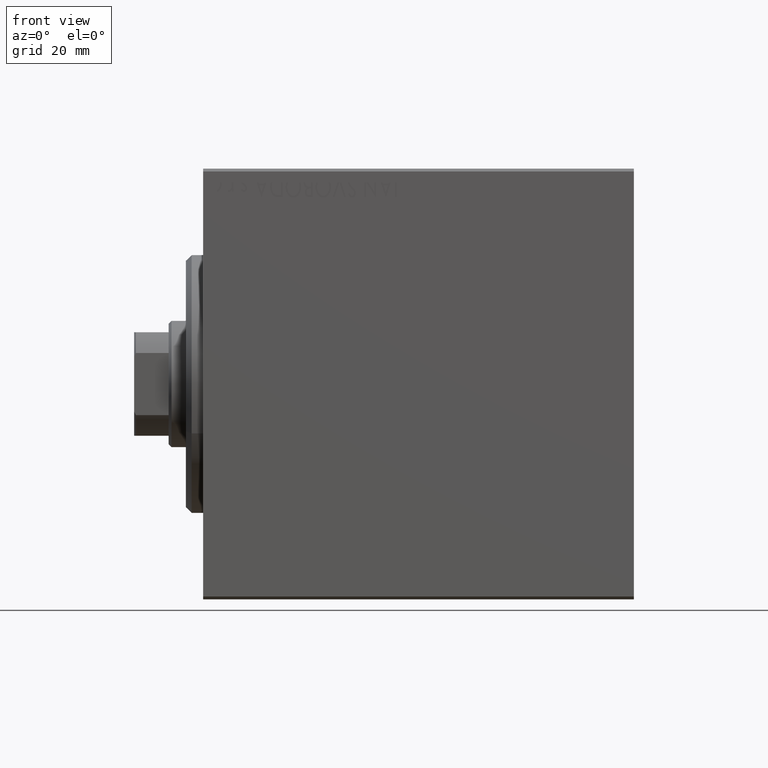
[diagram: clean part render]
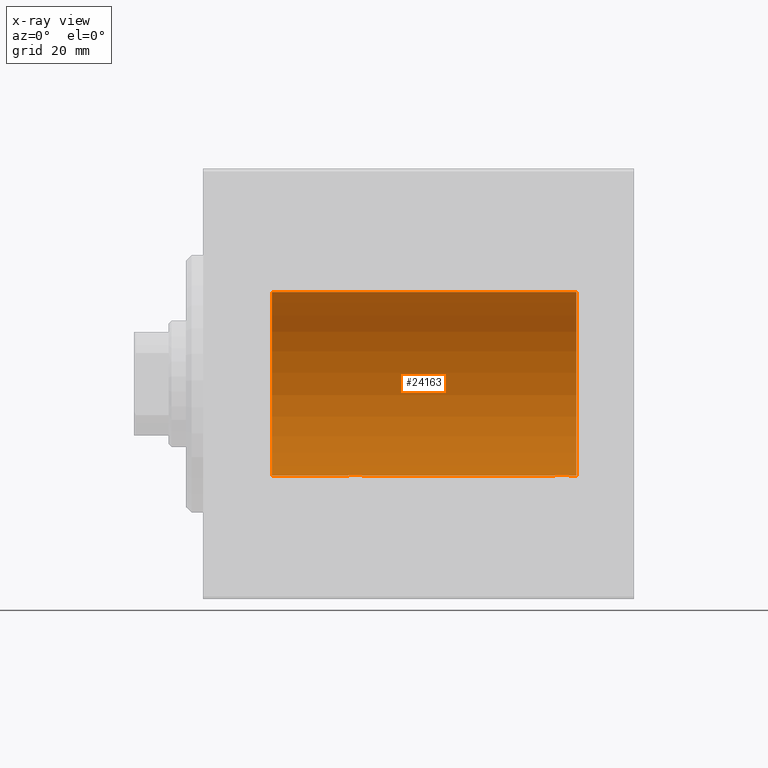
[diagram: x-ray — body ghosted, one internal face saturated and labeled with its STEP entity id]
A machine part, front view, then the same camera in x-ray: the body is ghosted and one INTERNAL B-rep face — a face not visible from any outside direction — is saturated and labeled: STEP entity #24163.
In plain terms, the highlighted cylindrical surface (partial cylindrical patch) has radius 16 mm, axis along (-1, -0, -0).
Its self-contained STEP definition (entity closure, byte-faithful):
#25 = ORIENTED_EDGE ( 'NONE', *, *, #27918, .F. ) ;
#1067 = CARTESIAN_POINT ( 'NONE',  ( 24.99389287531754178, 1.322357532253823909, -15.94553003295877325 ) ) ;
#1287 = CARTESIAN_POINT ( 'NONE',  ( 24.50000000000000000, 0.1322838750249235862, -16.00000000000000355 ) ) ;
#1385 = CARTESIAN_POINT ( 'NONE',  ( 11.99999999999999645, 0.000000000000000000, 16.00000000000000000 ) ) ;
#1471 = CARTESIAN_POINT ( 'NONE',  ( 63.01913097710111344, 1.935876924222080797, -15.88247600692093187 ) ) ;
#1493 = CARTESIAN_POINT ( 'NONE',  ( 64.50000000000000000, 1.959434851248285101E-15, -16.00000000000000000 ) ) ;
#1507 = EDGE_CURVE ( 'NONE', #35811, #20288, #25686, .T. ) ;
#1508 = CYLINDRICAL_SURFACE ( 'NONE', #41072, 16.00000000000000000 ) ;
#2123 = CARTESIAN_POINT ( 'NONE',  ( 60.56388673317934490, 0.5181437283162021457, -15.99211983514074653 ) ) ;
#2341 = CARTESIAN_POINT ( 'NONE',  ( 61.97468243540594557, 1.947280337074165368, -15.88137861827787134 ) ) ;
#3640 = B_SPLINE_CURVE_WITH_KNOTS ( 'NONE', 3,
 ( #35058, #15233, #42167, #2123, #42824, #32154, #12112, #29034, #25254, #32367, #38611, #2341, #11464, #18367, #5673, #1471, #19019, #25040, #25694, #19238, #25914, #28386, #32594, #11897, #41959, #15023, #12335, #28816, #22360, #39260 ),
 .UNSPECIFIED., .F., .F.,
 ( 4, 2, 2, 2, 2, 2, 2, 2, 2, 2, 2, 2, 2, 2, 4 ),
 ( 1.991932713717143819E-18, 0.0003911894522871088727, 0.0007823789045742156854, 0.001173568356861322227, 0.001564757809148428769, 0.002347136713722657465, 0.003129515618296885727, 0.003520705070584010266, 0.003911894522871134372, 0.004303083975158258911, 0.004694273427445384318, 0.005085462879732508858, 0.005476652332019634264, 0.005867841784306758804, 0.006259031236593884211 ),
 .UNSPECIFIED. ) ;
#4404 = CARTESIAN_POINT ( 'NONE',  ( 24.56388673317935556, 0.5181437283162043661, -15.99211983514074653 ) ) ;
#4839 = CARTESIAN_POINT ( 'NONE',  ( 24.76431901501738864, 1.002241074716281544, -15.96895041604536125 ) ) ;
#4906 = DIRECTION ( 'NONE',  ( -1.000000000000000000, -0.000000000000000000, -0.000000000000000000 ) ) ;
#5172 = ORIENTED_EDGE ( 'NONE', *, *, #32744, .T. ) ;
#5673 = CARTESIAN_POINT ( 'NONE',  ( 62.76251583007899626, 1.987008272775793838, -15.87616016863256263 ) ) ;
#6348 = DIRECTION ( 'NONE',  ( -1.000000000000000000, 0.000000000000000000, 0.000000000000000000 ) ) ;
#7080 = CARTESIAN_POINT ( 'NONE',  ( 65.00000000000000000, 1.959434878635765131E-15, -16.00000000000000000 ) ) ;
#7295 = DIRECTION ( 'NONE',  ( -1.000000000000000000, -0.000000000000000000, -0.000000000000000000 ) ) ;
#7949 = CARTESIAN_POINT ( 'NONE',  ( 27.71967657442277400, 1.590393755196007008, -15.92092783521424337 ) ) ;
#8334 = AXIS2_PLACEMENT_3D ( 'NONE', #20908, #34705, #24465 ) ;
#9519 = CARTESIAN_POINT ( 'NONE',  ( 65.00000000000000000, 0.000000000000000000, 16.00000000000000000 ) ) ;
#9792 = CIRCLE ( 'NONE', #8334, 16.00000000000000000 ) ;
#10479 = VECTOR ( 'NONE', #28961, 1000.000000000000000 ) ;
#11068 = CARTESIAN_POINT ( 'NONE',  ( 24.90948495147901554, 1.219564485341768645, -15.95382484008323409 ) ) ;
#11464 = CARTESIAN_POINT ( 'NONE',  ( 62.23808537237743366, 1.999903730784159173, -15.87451999516785861 ) ) ;
#11716 = CARTESIAN_POINT ( 'NONE',  ( 27.14386968033013758, 1.898058445420891305, -15.88709929148890510 ) ) ;
#11897 = CARTESIAN_POINT ( 'NONE',  ( 64.23482670674952999, 1.003662148334373283, -15.96885838080210362 ) ) ;
#12112 = CARTESIAN_POINT ( 'NONE',  ( 60.76431901501735666, 1.002241074716276437, -15.96895041604536125 ) ) ;
#12290 = VERTEX_POINT ( 'NONE', #30696 ) ;
#12335 = CARTESIAN_POINT ( 'NONE',  ( 64.43569052926127938, 0.5198215460038770885, -15.99206840425679310 ) ) ;
#14200 = CARTESIAN_POINT ( 'NONE',  ( 65.00000000000000000, 0.000000000000000000, 0.000000000000000000 ) ) ;
#14622 = CARTESIAN_POINT ( 'NONE',  ( 27.01913097710113121, 1.935876924222081907, -15.88247600692093187 ) ) ;
#14843 = CARTESIAN_POINT ( 'NONE',  ( 28.49999999999999645, 0.1305944228192321699, -16.00000000000000000 ) ) ;
#15023 = CARTESIAN_POINT ( 'NONE',  ( 64.39783726498897920, 0.6445079780200581032, -15.98747331501412816 ) ) ;
#15233 = CARTESIAN_POINT ( 'NONE',  ( 60.50000000000000000, 0.1322838750249188400, -15.99999999999999645 ) ) ;
#16365 = CARTESIAN_POINT ( 'NONE',  ( 65.00000000000000000, 0.000000000000000000, 0.000000000000000000 ) ) ;
#17479 = ORIENTED_EDGE ( 'NONE', *, *, #1507, .F. ) ;
#17616 = CARTESIAN_POINT ( 'NONE',  ( 65.00000000000000000, 0.000000000000000000, 16.00000000000000000 ) ) ;
#17932 = EDGE_LOOP ( 'NONE', ( #26055, #17479, #27454, #42218, #33394, #19994, #25, #5172 ) ) ;
#17977 = CARTESIAN_POINT ( 'NONE',  ( 24.70286585251780664, 0.8874076679346751817, -15.97583181162461408 ) ) ;
#18367 = CARTESIAN_POINT ( 'NONE',  ( 62.62985308350498315, 2.000047931387145983, -15.87450182760079898 ) ) ;
#18622 = CARTESIAN_POINT ( 'NONE',  ( 26.76251583007899271, 1.987008272775795614, -15.87616016863256263 ) ) ;
#19019 = CARTESIAN_POINT ( 'NONE',  ( 63.14386968033014114, 1.898058445420889750, -15.88709929148890510 ) ) ;
#19238 = CARTESIAN_POINT ( 'NONE',  ( 63.71967657442274913, 1.590393755196015002, -15.92092783521423272 ) ) ;
#19526 = DIRECTION ( 'NONE',  ( -1.000000000000000000, -0.000000000000000000, -0.000000000000000000 ) ) ;
#19994 = ORIENTED_EDGE ( 'NONE', *, *, #42368, .T. ) ;
#20288 = VERTEX_POINT ( 'NONE', #38875 ) ;
#20407 = VERTEX_POINT ( 'NONE', #22183 ) ;
#20550 = VECTOR ( 'NONE', #4906, 1000.000000000000000 ) ;
#20908 = CARTESIAN_POINT ( 'NONE',  ( 11.99999999999999645, 0.000000000000000000, 0.000000000000000000 ) ) ;
#21087 = CARTESIAN_POINT ( 'NONE',  ( 28.39783726498895433, 0.6445079780200565489, -15.98747331501412106 ) ) ;
#21194 = LINE ( 'NONE', #38108, #10479 ) ;
#21310 = CARTESIAN_POINT ( 'NONE',  ( 24.60241129944407135, 0.6452446332038127563, -15.98744362947834574 ) ) ;
#21341 = VERTEX_POINT ( 'NONE', #21702 ) ;
#21522 = CARTESIAN_POINT ( 'NONE',  ( 28.43569052926130070, 0.5198215460038754232, -15.99206840425679310 ) ) ;
#21702 = CARTESIAN_POINT ( 'NONE',  ( 11.99999999999999645, 1.959434878635765131E-15, -16.00000000000000000 ) ) ;
#21736 = CARTESIAN_POINT ( 'NONE',  ( 24.50000000000000000, -2.103178745110437193E-15, -16.00000000000000000 ) ) ;
#21960 = CARTESIAN_POINT ( 'NONE',  ( 25.97468243540595978, 1.947280337074166923, -15.88137861827786779 ) ) ;
#22183 = CARTESIAN_POINT ( 'NONE',  ( 24.50000000000000000, -2.103178745110437193E-15, -16.00000000000000000 ) ) ;
#22360 = CARTESIAN_POINT ( 'NONE',  ( 64.49999999999997158, 0.1305944228192322254, -15.99999999999999289 ) ) ;
#22714 = VERTEX_POINT ( 'NONE', #41014 ) ;
#23548 = EDGE_CURVE ( 'NONE', #20407, #21341, #21194, .T. ) ;
#24163 = ADVANCED_FACE ( 'NONE', ( #25078 ), #1508, .F. ) ;
#24465 = DIRECTION ( 'NONE',  ( 0.000000000000000000, 0.000000000000000000, 1.000000000000000000 ) ) ;
#24803 = VECTOR ( 'NONE', #7295, 1000.000000000000000 ) ;
#25040 = CARTESIAN_POINT ( 'NONE',  ( 63.38617757057270552, 1.797743958659260510, -15.89876304682112362 ) ) ;
#25078 = FACE_OUTER_BOUND ( 'NONE', #17932, .T. ) ;
#25254 = CARTESIAN_POINT ( 'NONE',  ( 60.99389287531753467, 1.322357532253821688, -15.94553003295876970 ) ) ;
#25521 = VECTOR ( 'NONE', #19526, 1000.000000000000000 ) ;
#25686 = CIRCLE ( 'NONE', #29242, 16.00000000000000000 ) ;
#25694 = CARTESIAN_POINT ( 'NONE',  ( 63.50311247035038065, 1.735145127817755650, -15.90580292899658055 ) ) ;
#25890 = B_SPLINE_CURVE_WITH_KNOTS ( 'NONE', 3,
 ( #21736, #1287, #35320, #4404, #21310, #17977, #4839, #11068, #1067, #28643, #42208, #21960, #28856, #28426, #18622, #14622, #11716, #41996, #38439, #7949, #31980, #32195, #35535, #31336, #38001, #21087, #21522, #35102, #14843, #34672 ),
 .UNSPECIFIED., .F., .F.,
 ( 4, 2, 2, 2, 2, 2, 2, 2, 2, 2, 2, 2, 2, 2, 4 ),
 ( 6.061338176617876434E-19, 0.0003911894522871146732, 0.0007823789045742288043, 0.001173568356861343261, 0.001564757809148457609, 0.002347136713722686955, 0.003129515618296916518, 0.003520705070584036721, 0.003911894522871156923, 0.004303083975158277993, 0.004694273427445398196, 0.005085462879732518399, 0.005476652332019638601, 0.005867841784306759671, 0.006259031236593879007 ),
 .UNSPECIFIED. ) ;
#25914 = CARTESIAN_POINT ( 'NONE',  ( 63.82075824828930877, 1.507649250492136606, -15.92908549642226745 ) ) ;
#26055 = ORIENTED_EDGE ( 'NONE', *, *, #41426, .F. ) ;
#26895 = LINE ( 'NONE', #7080, #24803 ) ;
#27454 = ORIENTED_EDGE ( 'NONE', *, *, #29005, .T. ) ;
#27918 = EDGE_CURVE ( 'NONE', #22714, #12290, #38502, .T. ) ;
#27983 = DIRECTION ( 'NONE',  ( -1.000000000000000000, -0.000000000000000000, -0.000000000000000000 ) ) ;
#28386 = CARTESIAN_POINT ( 'NONE',  ( 64.00737160312429808, 1.321075116345888256, -15.94564302722882232 ) ) ;
#28426 = CARTESIAN_POINT ( 'NONE',  ( 26.62985308350499025, 2.000047931387146871, -15.87450182760080253 ) ) ;
#28643 = CARTESIAN_POINT ( 'NONE',  ( 25.27043888260214999, 1.598790766515152173, -15.92099550861380486 ) ) ;
#28816 = CARTESIAN_POINT ( 'NONE',  ( 64.48690924832126825, 0.2632563459770859149, -15.99834873924246459 ) ) ;
#28856 = CARTESIAN_POINT ( 'NONE',  ( 26.23808537237744787, 1.999903730784159617, -15.87451999516785861 ) ) ;
#28961 = DIRECTION ( 'NONE',  ( -1.000000000000000000, -0.000000000000000000, -0.000000000000000000 ) ) ;
#29005 = EDGE_CURVE ( 'NONE', #35811, #39909, #36228, .T. ) ;
#29034 = CARTESIAN_POINT ( 'NONE',  ( 60.90948495147899422, 1.219564485341763760, -15.95382484008323054 ) ) ;
#29242 = AXIS2_PLACEMENT_3D ( 'NONE', #16365, #6348, #43062 ) ;
#30696 = CARTESIAN_POINT ( 'NONE',  ( 28.49999999999999645, 1.959434851238818770E-15, -16.00000000000000000 ) ) ;
#31336 = CARTESIAN_POINT ( 'NONE',  ( 28.23482670674955486, 1.003662148334367954, -15.96885838080211073 ) ) ;
#31980 = CARTESIAN_POINT ( 'NONE',  ( 27.82075824828932653, 1.507649250492136606, -15.92908549642227101 ) ) ;
#32154 = CARTESIAN_POINT ( 'NONE',  ( 60.70286585251778178, 0.8874076679346716290, -15.97583181162461052 ) ) ;
#32195 = CARTESIAN_POINT ( 'NONE',  ( 28.00737160312429452, 1.321075116345887368, -15.94564302722882587 ) ) ;
#32367 = CARTESIAN_POINT ( 'NONE',  ( 61.27043888260216420, 1.598790766515151063, -15.92099550861380841 ) ) ;
#32594 = CARTESIAN_POINT ( 'NONE',  ( 64.09001528100125711, 1.220169175415124929, -15.95377581882983975 ) ) ;
#32744 = EDGE_CURVE ( 'NONE', #22714, #39506, #3640, .T. ) ;
#33394 = ORIENTED_EDGE ( 'NONE', *, *, #23548, .F. ) ;
#34443 = DIRECTION ( 'NONE',  ( 0.000000000000000000, 0.000000000000000000, 1.000000000000000000 ) ) ;
#34672 = CARTESIAN_POINT ( 'NONE',  ( 28.49999999999999645, 1.959434851238818770E-15, -16.00000000000000000 ) ) ;
#34705 = DIRECTION ( 'NONE',  ( -1.000000000000000000, 0.000000000000000000, 0.000000000000000000 ) ) ;
#35058 = CARTESIAN_POINT ( 'NONE',  ( 60.49999999999999289, -9.573340169032840992E-15, -16.00000000000000000 ) ) ;
#35102 = CARTESIAN_POINT ( 'NONE',  ( 28.48690924832125759, 0.2632563459770846381, -15.99834873924246814 ) ) ;
#35320 = CARTESIAN_POINT ( 'NONE',  ( 24.51299475991587329, 0.2623312429553279479, -15.99836091803360105 ) ) ;
#35535 = CARTESIAN_POINT ( 'NONE',  ( 28.09001528100123224, 1.220169175415120932, -15.95377581882983797 ) ) ;
#35811 = VERTEX_POINT ( 'NONE', #17616 ) ;
#36228 = LINE ( 'NONE', #9519, #25521 ) ;
#37484 = EDGE_CURVE ( 'NONE', #39909, #21341, #9792, .T. ) ;
#38001 = CARTESIAN_POINT ( 'NONE',  ( 28.29749928605040665, 0.8866640484200122296, -15.97587307151818514 ) ) ;
#38108 = CARTESIAN_POINT ( 'NONE',  ( 65.00000000000000000, 1.959434878635765131E-15, -16.00000000000000000 ) ) ;
#38439 = CARTESIAN_POINT ( 'NONE',  ( 27.50311247035038775, 1.735145127817748323, -15.90580292899658410 ) ) ;
#38502 = LINE ( 'NONE', #41847, #20550 ) ;
#38611 = CARTESIAN_POINT ( 'NONE',  ( 61.49340818440418843, 1.747750603376301060, -15.90457341008072767 ) ) ;
#38875 = CARTESIAN_POINT ( 'NONE',  ( 65.00000000000000000, 1.959434878635765131E-15, -16.00000000000000000 ) ) ;
#39260 = CARTESIAN_POINT ( 'NONE',  ( 64.50000000000000000, 1.959434851248285101E-15, -16.00000000000000000 ) ) ;
#39506 = VERTEX_POINT ( 'NONE', #1493 ) ;
#39909 = VERTEX_POINT ( 'NONE', #1385 ) ;
#41014 = CARTESIAN_POINT ( 'NONE',  ( 60.49999999999999289, -9.573340169032840992E-15, -16.00000000000000000 ) ) ;
#41072 = AXIS2_PLACEMENT_3D ( 'NONE', #14200, #27983, #34443 ) ;
#41426 = EDGE_CURVE ( 'NONE', #20288, #39506, #26895, .T. ) ;
#41847 = CARTESIAN_POINT ( 'NONE',  ( 65.00000000000000000, 1.959434878635765131E-15, -16.00000000000000000 ) ) ;
#41959 = CARTESIAN_POINT ( 'NONE',  ( 64.29749928605036757, 0.8866640484200128958, -15.97587307151817804 ) ) ;
#41996 = CARTESIAN_POINT ( 'NONE',  ( 27.38617757057268420, 1.797743958659262731, -15.89876304682111652 ) ) ;
#42167 = CARTESIAN_POINT ( 'NONE',  ( 60.51299475991586263, 0.2623312429553253389, -15.99836091803360283 ) ) ;
#42208 = CARTESIAN_POINT ( 'NONE',  ( 25.49340818440419199, 1.747750603376302614, -15.90457341008072412 ) ) ;
#42218 = ORIENTED_EDGE ( 'NONE', *, *, #37484, .T. ) ;
#42368 = EDGE_CURVE ( 'NONE', #20407, #12290, #25890, .T. ) ;
#42824 = CARTESIAN_POINT ( 'NONE',  ( 60.60241129944407845, 0.6452446332038094257, -15.98744362947834929 ) ) ;
#43062 = DIRECTION ( 'NONE',  ( 0.000000000000000000, 0.000000000000000000, 1.000000000000000000 ) ) ;